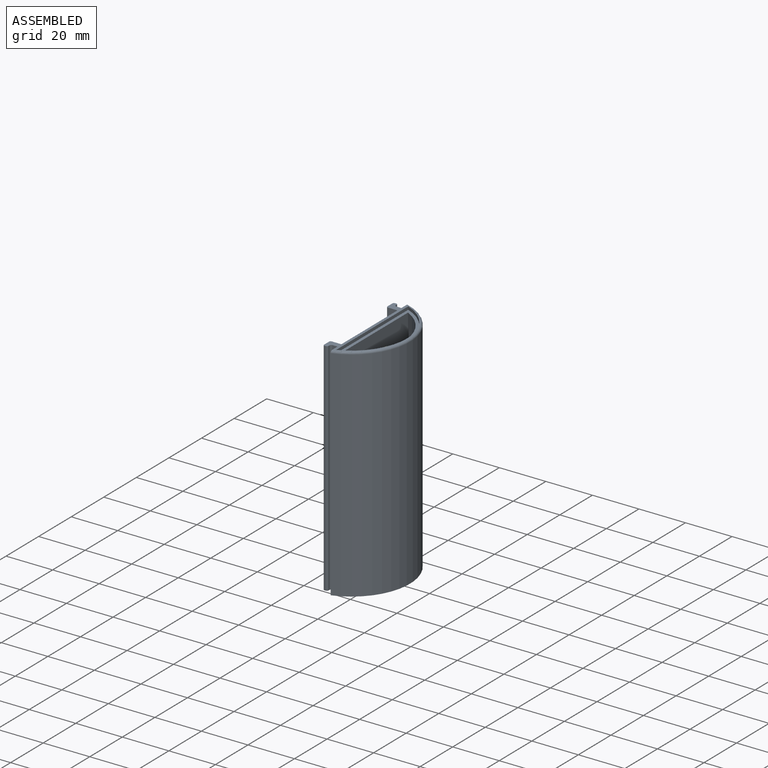
[diagram: assembled view]
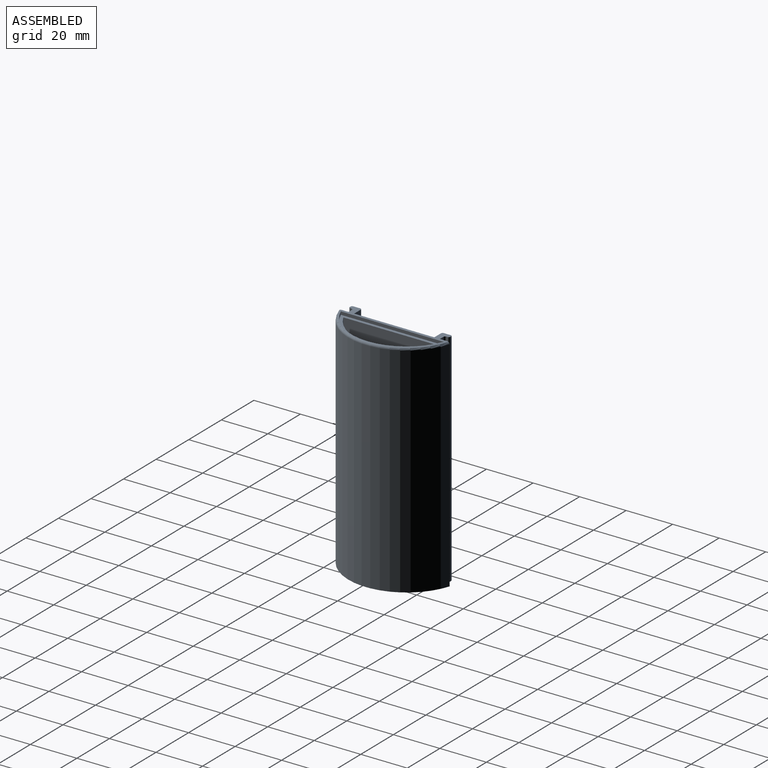
[diagram: assembled view, second angle]
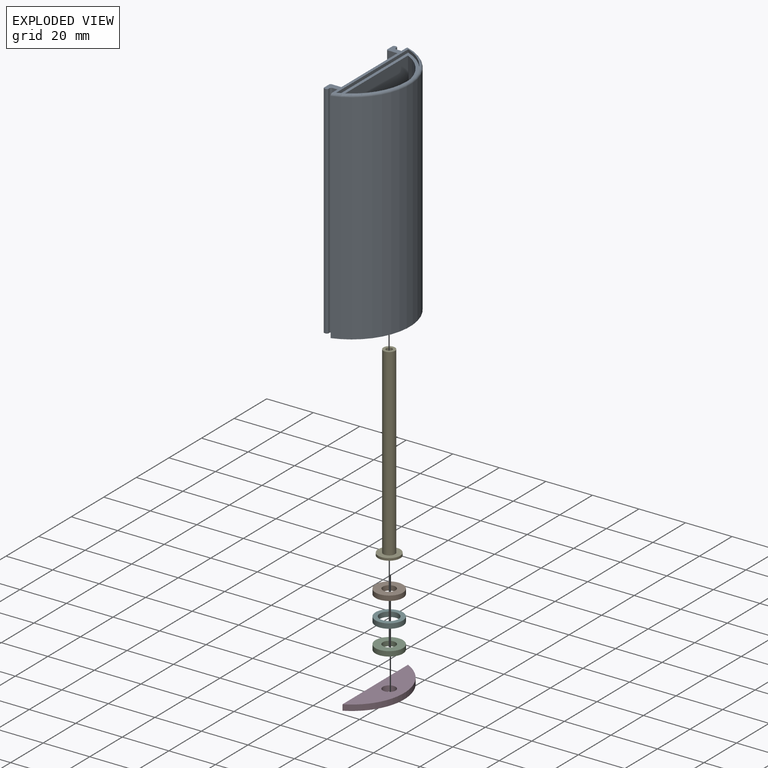
[diagram: exploded view]
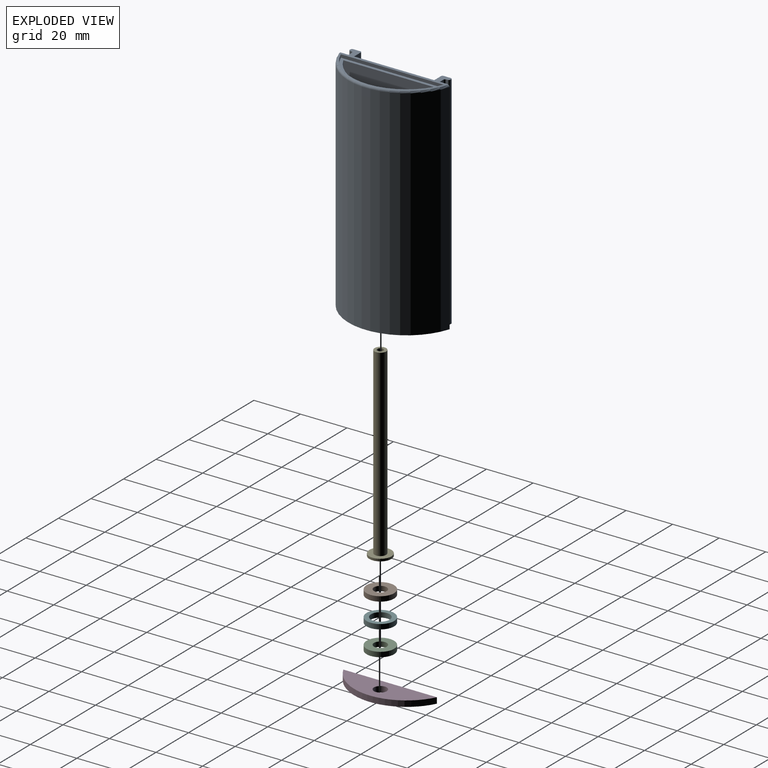
[diagram: exploded view, second angle]
ASSEMBLY  parts=6 mates=5
PART A: 47 faces, bbox 24.3x51.6x95 mm
  f0: plane 95x4.2mm, normal (-1,0,0), area 398.5mm2, adj f1,f23,f24,f25,f29
  f1: plane 95x2.1mm, normal (0,1,0), area 199.5mm2, adj f0,f2,f24,f25
  f2: cylinder r=0.8mm len=95mm, axis (0,0,-1), area 119.4mm2, adj f1,f3,f24,f25
  f3: plane 95x0.52mm, normal (1,0,0), area 49.2mm2, adj f2,f4,f24,f25
  f4: cylinder r=0.7mm len=95mm, axis (0,0,-1), area 104.5mm2, adj f3,f5,f24,f25
  f5: plane 95x0.5mm, normal (0,1,0), area 47.5mm2, adj f4,f6,f24,f25
  f6: cylinder r=0.7mm len=95mm, axis (0,0,-1), area 104.5mm2, adj f5,f7,f24,f25
  f7: plane 95x3.02mm, normal (-1,0,0), area 286.7mm2, adj f6,f8,f24,f25
  f8: cylinder r=0.7mm len=95mm, axis (0,0,-1), area 104.5mm2, adj f7,f9,f24,f25
  f9: plane 95x4.1mm, normal (0,-1,0), area 389.5mm2, adj f8,f10,f24,f25
  f10: plane 95x34.44mm, normal (-1,0,0), area 3271.7mm2, adj f9,f11,f24,f25
  f11: plane 95x4.1mm, normal (0,1,0), area 389.5mm2, adj f10,f12,f24,f25
  f12: cylinder r=0.7mm len=95mm, axis (0,0,-1), area 104.5mm2, adj f11,f13,f24,f25
  f13: plane 95x3.02mm, normal (-1,0,0), area 286.7mm2, adj f12,f14,f24,f25
  f14: cylinder r=0.7mm len=95mm, axis (0,0,-1), area 104.5mm2, adj f13,f15,f24,f25
  f15: plane 95x0.5mm, normal (0,-1,0), area 47.5mm2, adj f14,f16,f24,f25
  f16: cylinder r=0.7mm len=95mm, axis (0,0,-1), area 104.5mm2, adj f15,f17,f24,f25
  f17: plane 95x0.52mm, normal (1,0,0), area 49.2mm2, adj f16,f18,f24,f25
  f18: cylinder r=0.8mm len=95mm, axis (0,0,-1), area 119.4mm2, adj f17,f19,f24,f25
  f19: plane 95x2.1mm, normal (0,-1,0), area 199.5mm2, adj f18,f20,f24,f25
  f20: plane 95x4.2mm, normal (-1,0,0), area 398.5mm2, adj f19,f23,f24,f25,f29
  f21: cylinder r=23.8mm len=44.23mm, axis (0,0,-1), area 73.8mm2, adj f22,f24,f28
  f22: plane 44.23x1.3mm, normal (1,0,0), area 57.5mm2, adj f21,f24,f28
  f23: cylinder r=25mm len=94mm, axis (0,0,-1), area 5931mm2, adj f0,f20,f25,f29
  f24: plane 45.53x21.2mm, normal (0,0,1), area 95.9mm2, adj f0,f1,f2,f3,f4,f5,f6,f7
  f25: plane 47.63x22.2mm, normal (0,0,-1), area 281.6mm2, adj f0,f1,f2,f3,f4,f5,f6,f7
  f26: cylinder r=22.5mm len=93.7mm, axis (0,0,-1), area 4309.9mm2, adj f25,f27,f28,f30,f31,f35,f36,f37
  f27: plane 93.7x40.21mm, normal (1,0,0), area 3767.8mm2, adj f25,f26,f28
  f28: plane 44.23x15mm, normal (0,0,1), area 124.2mm2, adj f21,f22,f26,f27
  f29: torus R=24mm, axis (0,0,1), area 97.3mm2, adj f0,f20,f23,f24
  f30: plane 69x0.55mm, normal (0,-1,0), area 38.1mm2, adj f26,f34,f37,f42
  f31: plane 69x0.55mm, normal (0,1,0), area 38.1mm2, adj f26,f32,f41,f46
  f32: cylinder r=0.5mm len=69mm, axis (0,0,-1), area 51.2mm2, adj f31,f33,f40,f45
  f33: cylinder r=23.5mm len=69mm, axis (0,0,-1), area 282.4mm2, adj f32,f34,f39,f44
  f34: cylinder r=0.5mm len=69mm, axis (0,0,-1), area 51.2mm2, adj f30,f33,f38,f43
  f35: plane 4x0.59mm, normal (0,0,-1), area 2mm2, adj f26,f42,f44,f46
  f36: plane 4x0.59mm, normal (0,0,1), area 2mm2, adj f26,f37,f39,f41
  f37: cylinder r=0.5mm len=0.55mm, axis (1,0,0), area 0.4mm2, adj f26,f30,f36,f38
  f38: sphere r=0.5mm, area 0.4mm2, adj f34,f37,f39
  f39: torus R=23mm, axis (0,0,1), area 3.2mm2, adj f33,f36,f38,f40
  f40: sphere r=0.5mm, area 0.4mm2, adj f32,f39,f41
  f41: cylinder r=0.5mm len=0.55mm, axis (-1,0,0), area 0.4mm2, adj f26,f31,f36,f40
  f42: cylinder r=0.5mm len=0.55mm, axis (-1,0,0), area 0.4mm2, adj f26,f30,f35,f43
  f43: sphere r=0.5mm, area 0.4mm2, adj f34,f42,f44
  f44: torus R=23mm, axis (0,0,1), area 3.2mm2, adj f33,f35,f43,f45
  f45: sphere r=0.5mm, area 0.4mm2, adj f32,f44,f46
  f46: cylinder r=0.5mm len=0.55mm, axis (1,0,0), area 0.4mm2, adj f26,f31,f35,f45
PART B: 4 faces, bbox 11.8x11.8x2.1 mm
  f0: cylinder r=2.75mm len=5.5mm, axis (0,0,-1), area 36.3mm2, adj f2,f3
  f1: cylinder r=5.9mm len=11.8mm, axis (0,0,-1), area 77.8mm2, adj f2,f3
  f2: plane 11.8x11.8mm, normal (0,0,1), area 85.6mm2, adj f0,f1
  f3: plane 11.8x11.8mm, normal (0,0,-1), area 85.6mm2, adj f0,f1
PART C: 4 faces, bbox 11.8x11.8x2.1 mm
  f0: cylinder r=2.75mm len=5.5mm, axis (0,0,-1), area 36.3mm2, adj f2,f3
  f1: cylinder r=5.9mm len=11.8mm, axis (0,0,-1), area 77.8mm2, adj f2,f3
  f2: plane 11.8x11.8mm, normal (0,0,1), area 85.6mm2, adj f0,f1
  f3: plane 11.8x11.8mm, normal (0,0,-1), area 85.6mm2, adj f0,f1
PART D: 5 faces, bbox 12.4x40.2x2.5 mm
  f0: plane 40.21x2.5mm, normal (-1,0,0), area 100.5mm2, adj f2,f3,f4
  f1: cylinder r=2.75mm len=5.5mm, axis (0,0,-1), area 43.2mm2, adj f3,f4
  f2: cylinder r=22.5mm len=40.21mm, axis (0,0,-1), area 124.3mm2, adj f0,f3,f4
  f3: plane 40.21x12.4mm, normal (0,0,1), area 332.7mm2, adj f0,f1,f2
  f4: plane 40.21x12.4mm, normal (0,0,-1), area 332.7mm2, adj f0,f1,f2
PART E: 6 faces, bbox 9.5x9.5x80 mm
  f0: cylinder r=4.75mm len=9.5mm, axis (0,0,-1), area 29.8mm2, adj f1,f2
  f1: plane 9.5x9.5mm, normal (0,0,1), area 51.2mm2, adj f0,f4
  f2: plane 9.5x9.5mm, normal (0,0,-1), area 65.6mm2, adj f0,f3
  f3: cylinder r=1.3mm len=80mm, axis (0,0,-1), area 653.5mm2, adj f2,f5
  f4: cylinder r=2.5mm len=79mm, axis (0,0,-1), area 1240.9mm2, adj f1,f5
  f5: plane 5x5mm, normal (0,0,1), area 14.3mm2, adj f3,f4
PART F: 4 faces, bbox 11.8x11.8x2.1 mm
  f0: cylinder r=4mm len=8mm, axis (0,0,-1), area 52.8mm2, adj f2,f3
  f1: cylinder r=5.9mm len=11.8mm, axis (0,0,-1), area 77.8mm2, adj f2,f3
  f2: plane 11.8x11.8mm, normal (0,0,1), area 59.1mm2, adj f0,f1
  f3: plane 11.8x11.8mm, normal (0,0,-1), area 59.1mm2, adj f0,f1
PLACE A t=(-17.17,-0.31,-1.66)mm
PLACE B t=(-21.72,-0.31,5.04)mm
PLACE C t=(-1.07,-0.31,0.84)mm
PLACE D t=(-17.17,-0.31,-1.66)mm
PLACE E t=(-1.07,-0.31,7.14)mm
PLACE F t=(19.99,-0.31,2.94)mm
MATE fastened B.f0 <-> F.f0  axis (0,0,-1) through (-1.07,-0.31,5.04)mm
MATE fastened E.f0 <-> B.f0  axis (0,0,-1) through (-1.07,-0.31,7.14)mm
MATE fastened C.f0 <-> D.f1  axis (0,0,-1) through (-1.07,-0.31,0.84)mm
MATE fastened A.f25 <-> D.f4  axis (0,0,-1) through (-7.07,-20.42,-1.66)mm
MATE fastened F.f0 <-> C.f1  axis (0,0,-1) through (-1.07,-0.31,2.94)mm
